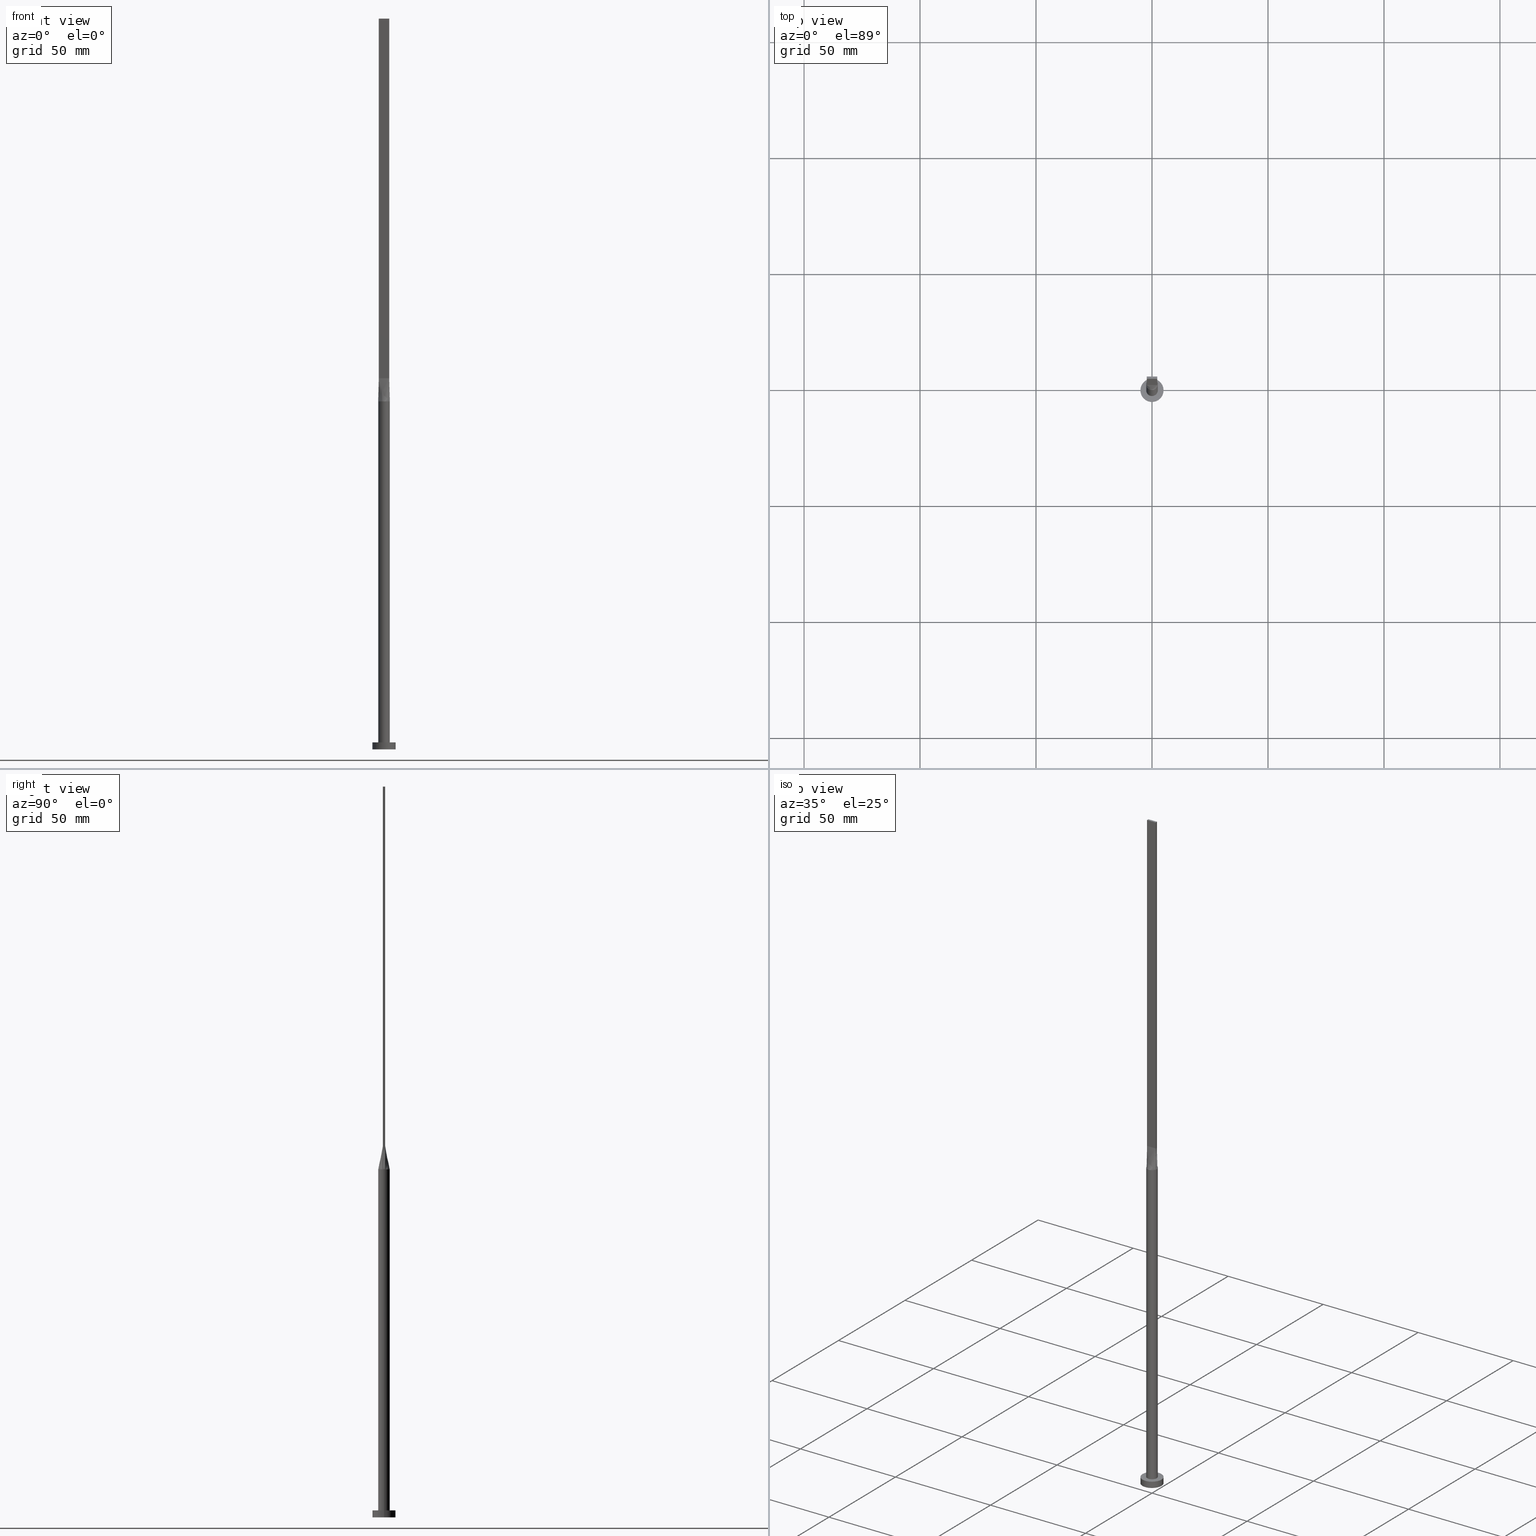
[diagram: canonical four-view strip — front | top / right | iso, engineering-drawing reading convention]
A machine part, canonical four-view strip (front | top / right | iso — engineering-drawing reading convention). The complete STEP part file that produces these views, byte-faithful:
ISO-10303-21;
HEADER;
FILE_DESCRIPTION (( 'STEP AP203' ),
    '1' );
FILE_NAME ('208b.STEP',
    '2023-02-13T12:34:08',
    ( '' ),
    ( '' ),
    'SwSTEP 2.0',
    'SolidWorks 2019',
    '' );
FILE_SCHEMA (( 'CONFIG_CONTROL_DESIGN' ));
ENDSEC;

DATA;
#1 = CARTESIAN_POINT ( 'NONE',  ( -2.249999999999999556, 0.1666666666666672403, 159.9999999999999716 ) ) ;
#2 = ORIENTED_EDGE ( 'NONE', *, *, #499, .T. ) ;
#3 = CARTESIAN_POINT ( 'NONE',  ( 0.000000000000000000, 0.000000000000000000, 0.000000000000000000 ) ) ;
#4 = ORIENTED_EDGE ( 'NONE', *, *, #347, .T. ) ;
#5 = AXIS2_PLACEMENT_3D ( 'NONE', #305, #261, #331 ) ;
#6 = CC_DESIGN_PERSON_AND_ORGANIZATION_ASSIGNMENT ( #440, #526, ( #46 ) ) ;
#7 = PLANE ( 'NONE',  #385 ) ;
#8 = ORIENTED_EDGE ( 'NONE', *, *, #410, .T. ) ;
#9 = CARTESIAN_POINT ( 'NONE',  ( -2.396350003401058082, 0.7408555563113466969, 150.0000000000000284 ) ) ;
#10 = EDGE_LOOP ( 'NONE', ( #186, #97, #182, #130, #201 ) ) ;
#11 = EDGE_CURVE ( 'NONE', #104, #449, #413, .T. ) ;
#12 = CARTESIAN_POINT ( 'NONE',  ( 0.000000000000000000, 0.000000000000000000, 3.000000000000000000 ) ) ;
#13 = ORIENTED_EDGE ( 'NONE', *, *, #139, .T. ) ;
#14 = CARTESIAN_POINT ( 'NONE',  ( 2.250000000000000000, -0.4999999999999997780, 315.0000000000000000 ) ) ;
#15 = CARTESIAN_POINT ( 'NONE',  ( -1.312500000000000444, -0.4999999999999995559, 159.9999999999999716 ) ) ;
#16 = DIRECTION ( 'NONE',  ( -0.000000000000000000, -0.000000000000000000, -1.000000000000000000 ) ) ;
#17 = FACE_OUTER_BOUND ( 'NONE', #289, .T. ) ;
#18 = DATE_AND_TIME ( #114, #515 ) ;
#19 = DIRECTION ( 'NONE',  ( -0.000000000000000000, -0.000000000000000000, -1.000000000000000000 ) ) ;
#20 = DIRECTION ( 'NONE',  ( 1.000000000000000000, 0.000000000000000000, 0.000000000000000000 ) ) ;
#21 = CALENDAR_DATE ( 2023, 13, 2 ) ;
#22 = CLOSED_SHELL ( 'NONE', ( #176, #525, #142, #265, #89, #407, #155, #512, #314, #302, #572, #542, #351, #319, #365 ) ) ;
#23 = CARTESIAN_POINT ( 'NONE',  ( 0.000000000000000000, 0.000000000000000000, 150.0000000000000000 ) ) ;
#24 = CARTESIAN_POINT ( 'NONE',  ( -2.440688158044365785, -0.5423755258804862089, 150.0000000000000000 ) ) ;
#25 = CIRCLE ( 'NONE', #374, 2.500000000000000000 ) ;
#26 = DIRECTION ( 'NONE',  ( -1.000000000000000000, 0.000000000000000000, 0.000000000000000000 ) ) ;
#27 = DIRECTION ( 'NONE',  ( -4.336808689942017736E-16, 1.000000000000000000, 0.000000000000000000 ) ) ;
#28 = EDGE_CURVE ( 'NONE', #234, #223, #184, .T. ) ;
#29 = CARTESIAN_POINT ( 'NONE',  ( 5.000000000000000000, 6.123233995736766282E-16, 3.000000000000000000 ) ) ;
#30 = CARTESIAN_POINT ( 'NONE',  ( 2.249999999999999556, 0.5000000000000002220, 315.0000000000000000 ) ) ;
#31 = VECTOR ( 'NONE', #345, 1000.000000000000114 ) ;
#32 = VECTOR ( 'NONE', #476, 1000.000000000000000 ) ;
#33 = CARTESIAN_POINT ( 'NONE',  ( 2.440467650459881899, -0.5423261445466410757, 150.0000000000000000 ) ) ;
#34 = LINE ( 'NONE', #185, #580 ) ;
#35 = DIRECTION ( 'NONE',  ( -1.000000000000000000, -0.000000000000000000, -0.000000000000000000 ) ) ;
#36 = ORIENTED_EDGE ( 'NONE', *, *, #472, .F. ) ;
#37 = EDGE_CURVE ( 'NONE', #317, #191, #247, .T. ) ;
#38 = LINE ( 'NONE', #349, #166 ) ;
#39 = ORIENTED_EDGE ( 'NONE', *, *, #147, .F. ) ;
#40 = LOCAL_TIME ( 13, 34, 8.000000000000000000, #263 ) ;
#41 = CARTESIAN_POINT ( 'NONE',  ( -0.7500000000000124345, 0.5000000000000002220, 159.9999999999999716 ) ) ;
#42 = AXIS2_PLACEMENT_3D ( 'NONE', #573, #391, #352 ) ;
#43 = ORIENTED_EDGE ( 'NONE', *, *, #478, .T. ) ;
#44 = LINE ( 'NONE', #414, #497 ) ;
#45 = ORIENTED_EDGE ( 'NONE', *, *, #76, .T. ) ;
#46 = PRODUCT_DEFINITION ( 'NEZN�M�', '', #405, #310 ) ;
#47 = CARTESIAN_POINT ( 'NONE',  ( -1.500000000000007327, 0.5000000000000002220, 159.9999999999999716 ) ) ;
#48 = EDGE_LOOP ( 'NONE', ( #442, #457 ) ) ;
#49 = CARTESIAN_POINT ( 'NONE',  ( -2.249999999999999556, 0.5000000000000002220, 160.0000000000000000 ) ) ;
#50 = ORIENTED_EDGE ( 'NONE', *, *, #389, .T. ) ;
#51 = CARTESIAN_POINT ( 'NONE',  ( -2.249999999999999556, -0.1666666666666659358, 159.9999999999999716 ) ) ;
#52 = ORIENTED_EDGE ( 'NONE', *, *, #76, .F. ) ;
#53 = DIRECTION ( 'NONE',  ( -0.000000000000000000, -0.000000000000000000, -1.000000000000000000 ) ) ;
#54 = APPROVAL ( #299, 'NEUR�EN�' ) ;
#55 = PRODUCT_DEFINITION_SHAPE ( 'NONE', 'NONE',  #46 ) ;
#56 = CARTESIAN_POINT ( 'NONE',  ( -2.250000000000000000, -0.4999999999999994449, 315.0000000000000000 ) ) ;
#57 = MECHANICAL_CONTEXT ( 'NONE', #447, 'mechanical' ) ;
#58 = AXIS2_PLACEMENT_3D ( 'NONE', #292, #67, #70 ) ;
#59 = PLANE ( 'NONE',  #406 ) ;
#60 = LINE ( 'NONE', #477, #31 ) ;
#61 = APPROVAL_PERSON_ORGANIZATION ( #121, #428, #339 ) ;
#62 = APPLICATION_PROTOCOL_DEFINITION ( 'international standard', 'config_control_design', 1994, #447 ) ;
#63 = CARTESIAN_POINT ( 'NONE',  ( 2.250000000000000000, -0.4999999999999997780, 315.0000000000000000 ) ) ;
#64 = DIRECTION ( 'NONE',  ( -0.000000000000000000, -0.000000000000000000, -1.000000000000000000 ) ) ;
#65 = PERSON_AND_ORGANIZATION ( #474, #297 ) ;
#66 = CARTESIAN_POINT ( 'NONE',  ( 2.250000000000000000, -0.4999999999999997780, 160.0000000000000000 ) ) ;
#67 = DIRECTION ( 'NONE',  ( 0.000000000000000000, 0.000000000000000000, 1.000000000000000000 ) ) ;
#68 = COORDINATED_UNIVERSAL_TIME_OFFSET ( 1, 0, .AHEAD. ) ;
#69 = CARTESIAN_POINT ( 'NONE',  ( 2.440706242928429415, -0.5423794613208688942, 150.0000000000000000 ) ) ;
#70 = DIRECTION ( 'NONE',  ( 1.000000000000000000, 0.000000000000000000, -0.000000000000000000 ) ) ;
#71 = VECTOR ( 'NONE', #379, 1000.000000000000000 ) ;
#72 = CARTESIAN_POINT ( 'NONE',  ( 0.000000000000000000, 0.000000000000000000, 0.000000000000000000 ) ) ;
#73 = ADVANCED_BREP_SHAPE_REPRESENTATION ( '208b', ( #152, #557 ), #308 ) ;
#74 = CIRCLE ( 'NONE', #241, 5.000000000000000000 ) ;
#75 = DIRECTION ( 'NONE',  ( 0.000000000000000000, -0.000000000000000000, -1.000000000000000000 ) ) ;
#76 = EDGE_CURVE ( 'NONE', #420, #317, #60, .T. ) ;
#77 = CARTESIAN_POINT ( 'NONE',  ( 2.093723281432890548, -1.388001797188530340, 150.0000000000000284 ) ) ;
#78 = ORIENTED_EDGE ( 'NONE', *, *, #93, .F. ) ;
#79 = CARTESIAN_POINT ( 'NONE',  ( 5.000000000000000000, 6.123233995736766282E-16, 0.000000000000000000 ) ) ;
#80 = ORIENTED_EDGE ( 'NONE', *, *, #389, .F. ) ;
#81 = CARTESIAN_POINT ( 'NONE',  ( 2.250000000000000000, -0.4999999999999997780, 160.0000000000000000 ) ) ;
#82 = VECTOR ( 'NONE', #427, 1000.000000000000000 ) ;
#83 = CARTESIAN_POINT ( 'NONE',  ( 0.000000000000000000, 0.000000000000000000, 150.0000000000000000 ) ) ;
#84 = AXIS2_PLACEMENT_3D ( 'NONE', #207, #438, #483 ) ;
#85 = ORIENTED_EDGE ( 'NONE', *, *, #169, .T. ) ;
#86 = CARTESIAN_POINT ( 'NONE',  ( 2.440467650459881899, 0.5423261445466406316, 150.0000000000000000 ) ) ;
#87 = CIRCLE ( 'NONE', #42, 2.500000000000000000 ) ;
#88 = VERTEX_POINT ( 'NONE', #204 ) ;
#89 = ADVANCED_FACE ( 'NONE', ( #165 ), #334, .F. ) ;
#90 = CARTESIAN_POINT ( 'NONE',  ( 0.000000000000000000, 0.000000000000000000, 3.000000000000000000 ) ) ;
#91 = B_SPLINE_SURFACE_WITH_KNOTS ( 'NONE', 3, 1, ( 
 ( #33, #81 ),
 ( #174, #390 ),
 ( #221, #536 ),
 ( #436, #533 ),
 ( #387, #224 ),
 ( #180, #397 ) ),
 .UNSPECIFIED., .F., .F., .F.,
 ( 4, 2, 4 ),
 ( 2, 2 ),
 ( 0.000000000000000000, 0.5000000000000000000, 1.000000000000000000 ),
 ( 0.000000000000000000, 1.000000000000000000 ),
 .UNSPECIFIED. ) ;
#92 = CARTESIAN_POINT ( 'NONE',  ( -1.519400572660313253, 2.006070808634367264, 150.0000000000000000 ) ) ;
#93 = EDGE_CURVE ( 'NONE', #514, #301, #248, .T. ) ;
#94 = VERTEX_POINT ( 'NONE', #530 ) ;
#95 = DIRECTION ( 'NONE',  ( 1.000000000000000000, 0.000000000000000000, 0.000000000000000000 ) ) ;
#96 = EDGE_CURVE ( 'NONE', #514, #244, #294, .T. ) ;
#97 = ORIENTED_EDGE ( 'NONE', *, *, #93, .T. ) ;
#98 = CARTESIAN_POINT ( 'NONE',  ( -1.312500000000008660, 0.5000000000000002220, 159.9999999999999716 ) ) ;
#99 = ORIENTED_EDGE ( 'NONE', *, *, #245, .F. ) ;
#100 = CARTESIAN_POINT ( 'NONE',  ( -2.250000000000000000, -0.3333333333333325932, 159.9999999999999716 ) ) ;
#101 = VERTEX_POINT ( 'NONE', #56 ) ;
#102 = CARTESIAN_POINT ( 'NONE',  ( 2.062499999999996891, 0.5000000000000002220, 159.9999999999999716 ) ) ;
#103 = LOCAL_TIME ( 13, 34, 8.000000000000000000, #303 ) ;
#104 = VERTEX_POINT ( 'NONE', #24 ) ;
#105 = VECTOR ( 'NONE', #16, 1000.000000000000000 ) ;
#106 = AXIS2_PLACEMENT_3D ( 'NONE', #131, #569, #125 ) ;
#107 = CC_DESIGN_PERSON_AND_ORGANIZATION_ASSIGNMENT ( #386, #124, ( #405 ) ) ;
#108 = CARTESIAN_POINT ( 'NONE',  ( -2.396350003401058082, 0.7408555563113466969, 150.0000000000000284 ) ) ;
#109 = CARTESIAN_POINT ( 'NONE',  ( -2.249999999999999556, 0.5000000000000002220, 160.0000000000000000 ) ) ;
#110 = PERSON_AND_ORGANIZATION ( #474, #297 ) ;
#111 = CARTESIAN_POINT ( 'NONE',  ( -0.6674771052374470770, 2.430579781493059421, 149.9999999999999716 ) ) ;
#112 = CARTESIAN_POINT ( 'NONE',  ( 0.000000000000000000, 0.000000000000000000, 0.000000000000000000 ) ) ;
#113 = EDGE_CURVE ( 'NONE', #244, #496, #115, .T. ) ;
#114 = CALENDAR_DATE ( 2023, 13, 2 ) ;
#115 = CIRCLE ( 'NONE', #5, 2.500000000000000000 ) ;
#116 = CARTESIAN_POINT ( 'NONE',  ( -2.250000000000000000, -0.4999999999999994449, 160.0000000000000000 ) ) ;
#117 = CARTESIAN_POINT ( 'NONE',  ( -0.6674771052374477431, -2.430579781493059865, 149.9999999999999716 ) ) ;
#118 = PERSON_AND_ORGANIZATION_ROLE ( 'classification_officer' ) ;
#119 = LINE ( 'NONE', #209, #71 ) ;
#120 = CARTESIAN_POINT ( 'NONE',  ( 0.6674771052374466329, -2.430579781493059865, 149.9999999999999716 ) ) ;
#121 = PERSON_AND_ORGANIZATION ( #474, #297 ) ;
#122 = DIRECTION ( 'NONE',  ( 1.000000000000000000, -7.228014483236697048E-17, 0.000000000000000000 ) ) ;
#123 = DIRECTION ( 'NONE',  ( 1.000000000000000000, 0.000000000000000000, 0.000000000000000000 ) ) ;
#124 = PERSON_AND_ORGANIZATION_ROLE ( 'creator' ) ;
#125 = DIRECTION ( 'NONE',  ( 4.336808689942019708E-16, 1.000000000000000000, 0.000000000000000000 ) ) ;
#126 = CARTESIAN_POINT ( 'NONE',  ( 1.499999999999999778, -0.4999999999999997780, 159.9999999999999716 ) ) ;
#127 = CC_DESIGN_APPROVAL ( #54, ( #394 ) ) ;
#128 = CARTESIAN_POINT ( 'NONE',  ( 0.000000000000000000, 0.000000000000000000, 3.000000000000000000 ) ) ;
#129 = LINE ( 'NONE', #30, #466 ) ;
#130 = ORIENTED_EDGE ( 'NONE', *, *, #341, .F. ) ;
#131 = CARTESIAN_POINT ( 'NONE',  ( -2.249999999999999556, 0.5000000000000002220, 315.0000000000000000 ) ) ;
#132 = DIRECTION ( 'NONE',  ( -1.000000000000000000, 0.000000000000000000, 0.000000000000000000 ) ) ;
#133 = DIRECTION ( 'NONE',  ( 0.000000000000000000, 0.000000000000000000, 1.000000000000000000 ) ) ;
#134 = APPROVAL ( #560, 'NEUR�EN�' ) ;
#135 = ORIENTED_EDGE ( 'NONE', *, *, #205, .T. ) ;
#136 = DIRECTION ( 'NONE',  ( -1.000000000000000000, 0.000000000000000000, 0.000000000000000000 ) ) ;
#137 = VECTOR ( 'NONE', #122, 1000.000000000000000 ) ;
#138 = ORIENTED_EDGE ( 'NONE', *, *, #472, .T. ) ;
#139 = EDGE_CURVE ( 'NONE', #451, #88, #517, .T. ) ;
#140 = CARTESIAN_POINT ( 'NONE',  ( -2.499291179871646840, 0.1829277781556734317, 150.0000000000000000 ) ) ;
#141 = ORIENTED_EDGE ( 'NONE', *, *, #28, .T. ) ;
#142 = ADVANCED_FACE ( 'NONE', ( #17 ), #298, .T. ) ;
#143 = CARTESIAN_POINT ( 'NONE',  ( 0.3342381693191150416, 2.499999999999999556, 150.0000000000000000 ) ) ;
#144 = ORIENTED_EDGE ( 'NONE', *, *, #454, .T. ) ;
#145 = B_SPLINE_CURVE_WITH_KNOTS ( 'NONE', 3,
 ( #529, #433, #369, #330, #519, #480, #304, #482, #566, #206, #111, #171, #558, #373, #161, #555, #108, #156 ),
 .UNSPECIFIED., .F., .F.,
 ( 4, 2, 2, 2, 2, 2, 2, 2, 4 ),
 ( 0.000000000000000000, 0.1249999999999999722, 0.2500000000000000000, 0.3750000000000000000, 0.5000000000000001110, 0.6250000000000001110, 0.7500000000000000000, 0.8750000000000000000, 1.000000000000000000 ),
 .UNSPECIFIED. ) ;
#146 = FACE_OUTER_BOUND ( 'NONE', #581, .T. ) ;
#147 = EDGE_CURVE ( 'NONE', #266, #496, #217, .T. ) ;
#148 = AXIS2_PLACEMENT_3D ( 'NONE', #441, #227, #229 ) ;
#149 = ORIENTED_EDGE ( 'NONE', *, *, #315, .F. ) ;
#150 = CARTESIAN_POINT ( 'NONE',  ( 1.519400572660313031, 2.006070808634367708, 149.9999999999999716 ) ) ;
#151 = EDGE_LOOP ( 'NONE', ( #548, #360, #195, #144 ) ) ;
#152 = MANIFOLD_SOLID_BREP ( 'P�idat vysunut�m5', #22 ) ;
#153 = FACE_OUTER_BOUND ( 'NONE', #504, .T. ) ;
#154 = EDGE_LOOP ( 'NONE', ( #508, #544 ) ) ;
#155 = ADVANCED_FACE ( 'NONE', ( #384 ), #452, .T. ) ;
#156 = CARTESIAN_POINT ( 'NONE',  ( -2.440694335308545071, 0.5423767520433731004, 150.0000000000000000 ) ) ;
#157 = APPROVAL_PERSON_ORGANIZATION ( #335, #134, #160 ) ;
#158 = ORIENTED_EDGE ( 'NONE', *, *, #220, .T. ) ;
#159 = AXIS2_PLACEMENT_3D ( 'NONE', #23, #291, #469 ) ;
#160 = APPROVAL_ROLE ( '' ) ;
#161 = CARTESIAN_POINT ( 'NONE',  ( -2.093723281432891437, 1.388001797188529451, 150.0000000000000000 ) ) ;
#162 = CARTESIAN_POINT ( 'NONE',  ( -0.9375000000000006661, -0.4999999999999995559, 159.9999999999999716 ) ) ;
#163 = PERSON_AND_ORGANIZATION_ROLE ( 'design_owner' ) ;
#164 = LINE ( 'NONE', #376, #488 ) ;
#165 = FACE_OUTER_BOUND ( 'NONE', #48, .T. ) ;
#166 = VECTOR ( 'NONE', #276, 1000.000000000000114 ) ;
#167 = DIRECTION ( 'NONE',  ( -1.000000000000000000, 7.228014483236697048E-17, 0.000000000000000000 ) ) ;
#168 = CARTESIAN_POINT ( 'NONE',  ( -2.250000000000000000, -0.4999999999999994449, 160.0000000000000000 ) ) ;
#169 = EDGE_CURVE ( 'NONE', #465, #317, #222, .T. ) ;
#170 = CALENDAR_DATE ( 2023, 13, 2 ) ;
#171 = CARTESIAN_POINT ( 'NONE',  ( -1.260416918790968843, 2.182794756967428196, 149.9999999999999716 ) ) ;
#172 = CARTESIAN_POINT ( 'NONE',  ( -1.875000000000000444, -0.4999999999999995559, 160.0000000000000000 ) ) ;
#173 = APPROVAL_DATE_TIME ( #18, #134 ) ;
#174 = CARTESIAN_POINT ( 'NONE',  ( 2.479683336734391563, -0.3658555563113470299, 150.0000000000000000 ) ) ;
#175 = LINE ( 'NONE', #225, #215 ) ;
#176 = ADVANCED_FACE ( 'NONE', ( #534 ), #540, .T. ) ;
#177 =( NAMED_UNIT ( * ) SI_UNIT ( $, .STERADIAN. ) SOLID_ANGLE_UNIT ( ) );
#178 = CARTESIAN_POINT ( 'NONE',  ( 2.250000000000000000, -0.4999999999999997780, 160.0000000000000000 ) ) ;
#179 = AXIS2_PLACEMENT_3D ( 'NONE', #90, #354, #537 ) ;
#180 = CARTESIAN_POINT ( 'NONE',  ( 2.440467650459881899, 0.5423261445466404096, 150.0000000000000000 ) ) ;
#181 = PLANE ( 'NONE',  #179 ) ;
#182 = ORIENTED_EDGE ( 'NONE', *, *, #189, .T. ) ;
#183 = FACE_BOUND ( 'NONE', #269, .T. ) ;
#184 = CIRCLE ( 'NONE', #350, 5.000000000000000000 ) ;
#185 = CARTESIAN_POINT ( 'NONE',  ( -2.345233825229941171, -0.5211630722733197052, 155.0000000000000000 ) ) ;
#186 = ORIENTED_EDGE ( 'NONE', *, *, #245, .T. ) ;
#187 = B_SPLINE_SURFACE_WITH_KNOTS ( 'NONE', 3, 1, ( 
 ( #408, #411 ),
 ( #509, #197 ),
 ( #140, #1 ),
 ( #279, #51 ),
 ( #190, #100 ),
 ( #322, #359 ) ),
 .UNSPECIFIED., .F., .F., .F.,
 ( 4, 2, 4 ),
 ( 2, 2 ),
 ( 0.000000000000000000, 0.5000000000000000000, 1.000000000000000000 ),
 ( 0.000000000000000000, 1.000000000000000000 ),
 .UNSPECIFIED. ) ;
#188 = CARTESIAN_POINT ( 'NONE',  ( 1.260416918790968843, 2.182794756967427752, 149.9999999999999716 ) ) ;
#189 = EDGE_CURVE ( 'NONE', #301, #465, #38, .T. ) ;
#190 = CARTESIAN_POINT ( 'NONE',  ( -2.479683336734392007, -0.3658555563113460307, 150.0000000000000000 ) ) ;
#191 = VERTEX_POINT ( 'NONE', #490 ) ;
#192 = DIRECTION ( 'NONE',  ( 0.000000000000000000, 0.000000000000000000, 1.000000000000000000 ) ) ;
#193 = ORIENTED_EDGE ( 'NONE', *, *, #531, .T. ) ;
#194 = CARTESIAN_POINT ( 'NONE',  ( -2.250000000000000000, -0.4999999999999994449, 315.0000000000000000 ) ) ;
#195 = ORIENTED_EDGE ( 'NONE', *, *, #437, .F. ) ;
#196 = APPLICATION_CONTEXT ( 'configuration controlled 3d designs of mechanical parts and assemblies' ) ;
#197 = CARTESIAN_POINT ( 'NONE',  ( -2.249999999999999556, 0.3333333333333337589, 159.9999999999999716 ) ) ;
#198 = EDGE_CURVE ( 'NONE', #88, #94, #129, .T. ) ;
#199 = ORIENTED_EDGE ( 'NONE', *, *, #499, .F. ) ;
#200 = DIRECTION ( 'NONE',  ( 7.228014483236697048E-17, 1.000000000000000000, -0.000000000000000000 ) ) ;
#201 = ORIENTED_EDGE ( 'NONE', *, *, #239, .F. ) ;
#202 = CALENDAR_DATE ( 2023, 13, 2 ) ;
#203 = FACE_OUTER_BOUND ( 'NONE', #286, .T. ) ;
#204 = CARTESIAN_POINT ( 'NONE',  ( 2.249999999999999556, 0.5000000000000002220, 315.0000000000000000 ) ) ;
#205 = EDGE_CURVE ( 'NONE', #266, #104, #343, .T. ) ;
#206 = CARTESIAN_POINT ( 'NONE',  ( -0.3342381693191151526, 2.499999999999999556, 150.0000000000000284 ) ) ;
#207 = CARTESIAN_POINT ( 'NONE',  ( 0.000000000000000000, 0.000000000000000000, 3.000000000000000000 ) ) ;
#208 = DATE_TIME_ROLE ( 'classification_date' ) ;
#209 = CARTESIAN_POINT ( 'NONE',  ( -2.250000000000000000, -0.4999999999999994449, 315.0000000000000000 ) ) ;
#210 = CARTESIAN_POINT ( 'NONE',  ( 2.250000000000000000, -0.4999999999999997780, 315.0000000000000000 ) ) ;
#211 = DATE_AND_TIME ( #21, #251 ) ;
#212 = LINE ( 'NONE', #383, #32 ) ;
#213 = CARTESIAN_POINT ( 'NONE',  ( 0.000000000000000000, 0.000000000000000000, 150.0000000000000000 ) ) ;
#214 = PERSON_AND_ORGANIZATION_ROLE ( 'design_supplier' ) ;
#215 = VECTOR ( 'NONE', #498, 1000.000000000000114 ) ;
#216 = PLANE ( 'NONE',  #106 ) ;
#217 = LINE ( 'NONE', #388, #523 ) ;
#218 = DIRECTION ( 'NONE',  ( -0.000000000000000000, -0.000000000000000000, -1.000000000000000000 ) ) ;
#219 = CARTESIAN_POINT ( 'NONE',  ( -2.249999999999999556, 0.5000000000000002220, 160.0000000000000000 ) ) ;
#220 = EDGE_CURVE ( 'NONE', #191, #104, #34, .T. ) ;
#221 = CARTESIAN_POINT ( 'NONE',  ( 2.499291179871646396, -0.1829277781556736815, 150.0000000000000000 ) ) ;
#222 = LINE ( 'NONE', #219, #338 ) ;
#223 = VERTEX_POINT ( 'NONE', #79 ) ;
#224 = CARTESIAN_POINT ( 'NONE',  ( 2.249999999999999556, 0.3333333333333332593, 159.9999999999999716 ) ) ;
#225 = CARTESIAN_POINT ( 'NONE',  ( 2.345233825229940727, -0.5211630722733201493, 155.0000000000000000 ) ) ;
#226 = ORIENTED_EDGE ( 'NONE', *, *, #456, .F. ) ;
#227 = DIRECTION ( 'NONE',  ( 0.000000000000000000, 0.000000000000000000, 1.000000000000000000 ) ) ;
#228 = ORIENTED_EDGE ( 'NONE', *, *, #290, .F. ) ;
#229 = DIRECTION ( 'NONE',  ( 1.000000000000000000, 0.000000000000000000, 0.000000000000000000 ) ) ;
#230 = ORIENTED_EDGE ( 'NONE', *, *, #273, .T. ) ;
#231 = APPROVAL_PERSON_ORGANIZATION ( #110, #54, #378 ) ;
#232 = CARTESIAN_POINT ( 'NONE',  ( -0.3342381693191151526, 2.499999999999999556, 150.0000000000000284 ) ) ;
#233 = CC_DESIGN_DATE_AND_TIME_ASSIGNMENT ( #432, #208, ( #394 ) ) ;
#234 = VERTEX_POINT ( 'NONE', #404 ) ;
#235 = DIRECTION ( 'NONE',  ( -4.336808689942017736E-16, 1.000000000000000000, -0.000000000000000000 ) ) ;
#236 = EDGE_LOOP ( 'NONE', ( #554, #45, #552, #494 ) ) ;
#237 = CARTESIAN_POINT ( 'NONE',  ( 2.093723281432890104, 1.388001797188529007, 149.9999999999999716 ) ) ;
#238 = VERTEX_POINT ( 'NONE', #29 ) ;
#239 = EDGE_CURVE ( 'NONE', #449, #491, #175, .T. ) ;
#240 = CARTESIAN_POINT ( 'NONE',  ( -1.935644909179609297, 1.608159499248285718, 149.9999999999999716 ) ) ;
#241 = AXIS2_PLACEMENT_3D ( 'NONE', #3, #192, #361 ) ;
#242 = ORIENTED_EDGE ( 'NONE', *, *, #421, .F. ) ;
#243 = PLANE ( 'NONE',  #506 ) ;
#244 = VERTEX_POINT ( 'NONE', #393 ) ;
#245 = EDGE_CURVE ( 'NONE', #449, #514, #87, .T. ) ;
#246 = CARTESIAN_POINT ( 'NONE',  ( 2.249999999999999556, 0.5000000000000002220, 160.0000000000000000 ) ) ;
#247 = LINE ( 'NONE', #109, #463 ) ;
#248 = CIRCLE ( 'NONE', #258, 2.500000000000000000 ) ;
#249 = DATE_AND_TIME ( #253, #435 ) ;
#250 = LINE ( 'NONE', #425, #105 ) ;
#251 = LOCAL_TIME ( 13, 34, 8.000000000000000000, #475 ) ;
#252 = CARTESIAN_POINT ( 'NONE',  ( 2.500000000000000000, 3.061616997868383141E-16, 150.0000000000000000 ) ) ;
#253 = CALENDAR_DATE ( 2023, 13, 2 ) ;
#254 = DIRECTION ( 'NONE',  ( 0.000000000000000000, 0.000000000000000000, 1.000000000000000000 ) ) ;
#255 = CARTESIAN_POINT ( 'NONE',  ( -0.3750000000000002220, -0.4999999999999995559, 159.9999999999999716 ) ) ;
#256 = DIRECTION ( 'NONE',  ( 1.000000000000000000, 0.000000000000000000, 0.000000000000000000 ) ) ;
#257 = DIRECTION ( 'NONE',  ( 0.000000000000000000, 0.000000000000000000, 1.000000000000000000 ) ) ;
#258 = AXIS2_PLACEMENT_3D ( 'NONE', #470, #257, #434 ) ;
#259 = COORDINATED_UNIVERSAL_TIME_OFFSET ( 1, 0, .AHEAD. ) ;
#260 = DIRECTION ( 'NONE',  ( 1.000000000000000000, -7.228014483236697048E-17, 0.000000000000000000 ) ) ;
#261 = DIRECTION ( 'NONE',  ( 0.000000000000000000, 0.000000000000000000, 1.000000000000000000 ) ) ;
#262 = CC_DESIGN_APPROVAL ( #428, ( #46 ) ) ;
#263 = COORDINATED_UNIVERSAL_TIME_OFFSET ( 1, 0, .AHEAD. ) ;
#264 = CARTESIAN_POINT ( 'NONE',  ( 1.519400572660313031, -2.006070808634367264, 149.9999999999999716 ) ) ;
#265 = ADVANCED_FACE ( 'NONE', ( #183, #267 ), #181, .T. ) ;
#266 = VERTEX_POINT ( 'NONE', #271 ) ;
#267 = FACE_OUTER_BOUND ( 'NONE', #154, .T. ) ;
#268 = CC_DESIGN_PERSON_AND_ORGANIZATION_ASSIGNMENT ( #532, #163, ( #500 ) ) ;
#269 = EDGE_LOOP ( 'NONE', ( #366, #556 ) ) ;
#270 =( LENGTH_UNIT ( ) NAMED_UNIT ( * ) SI_UNIT ( .MILLI., .METRE. ) );
#271 = CARTESIAN_POINT ( 'NONE',  ( -2.499645589935823420, -1.700711608024726496E-15, 150.0000000000000000 ) ) ;
#272 = ORIENTED_EDGE ( 'NONE', *, *, #454, .F. ) ;
#273 = EDGE_CURVE ( 'NONE', #496, #244, #25, .T. ) ;
#274 = CARTESIAN_POINT ( 'NONE',  ( 2.249999999999999556, 0.5000000000000002220, 160.0000000000000000 ) ) ;
#275 = ORIENTED_EDGE ( 'NONE', *, *, #401, .F. ) ;
#276 = DIRECTION ( 'NONE',  ( -0.01904314058352517616, -0.004231809018561114022, 0.9998097071888962795 ) ) ;
#277 = B_SPLINE_SURFACE_WITH_KNOTS ( 'NONE', 3, 1, ( 
 ( #86, #274 ),
 ( #450, #102 ),
 ( #513, #455 ),
 ( #237, #550 ),
 ( #285, #358 ),
 ( #150, #501 ),
 ( #188, #464 ),
 ( #283, #545 ),
 ( #143, #417 ),
 ( #232, #326 ),
 ( #507, #324 ),
 ( #461, #41 ),
 ( #92, #320 ),
 ( #240, #98 ),
 ( #579, #47 ),
 ( #288, #364 ),
 ( #9, #543 ),
 ( #503, #49 ) ),
 .UNSPECIFIED., .F., .F., .F.,
 ( 4, 2, 2, 2, 2, 2, 2, 2, 4 ),
 ( 2, 2 ),
 ( 0.000000000000000000, 0.1249999999999999722, 0.2500000000000000000, 0.3750000000000000000, 0.5000000000000001110, 0.6250000000000001110, 0.7500000000000000000, 0.8750000000000000000, 1.000000000000000000 ),
 ( 0.000000000000000000, 1.000000000000000000 ),
 .UNSPECIFIED. ) ;
#278 = AXIS2_PLACEMENT_3D ( 'NONE', #213, #473, #123 ) ;
#279 = CARTESIAN_POINT ( 'NONE',  ( -2.499291179871646840, -0.1829277781556729043, 150.0000000000000000 ) ) ;
#280 = EDGE_LOOP ( 'NONE', ( #78, #462, #329, #39, #199, #275 ) ) ;
#281 = CARTESIAN_POINT ( 'NONE',  ( 2.250000000000000000, -0.4999999999999997780, 315.0000000000000000 ) ) ;
#282 = ORIENTED_EDGE ( 'NONE', *, *, #531, .F. ) ;
#283 = CARTESIAN_POINT ( 'NONE',  ( 0.6674771052374470770, 2.430579781493058977, 149.9999999999999432 ) ) ;
#284 = ORIENTED_EDGE ( 'NONE', *, *, #198, .T. ) ;
#285 = CARTESIAN_POINT ( 'NONE',  ( 1.935644909179608186, 1.608159499248285051, 149.9999999999999432 ) ) ;
#286 = EDGE_LOOP ( 'NONE', ( #284, #460, #193, #13 ) ) ;
#287 = VECTOR ( 'NONE', #344, 1000.000000000000000 ) ;
#288 = CARTESIAN_POINT ( 'NONE',  ( -2.323660390030918510, 0.9543733860570832173, 150.0000000000000000 ) ) ;
#289 = EDGE_LOOP ( 'NONE', ( #415, #226, #409, #141 ) ) ;
#290 = EDGE_CURVE ( 'NONE', #88, #465, #577, .T. ) ;
#291 = DIRECTION ( 'NONE',  ( -0.000000000000000000, -0.000000000000000000, -1.000000000000000000 ) ) ;
#292 = CARTESIAN_POINT ( 'NONE',  ( 0.000000000000000000, 0.000000000000000000, 0.000000000000000000 ) ) ;
#293 = DIRECTION ( 'NONE',  ( 1.000000000000000000, 0.000000000000000000, -0.000000000000000000 ) ) ;
#294 = LINE ( 'NONE', #252, #82 ) ;
#295 = SECURITY_CLASSIFICATION_LEVEL ( 'unclassified' ) ;
#296 = FACE_OUTER_BOUND ( 'NONE', #321, .T. ) ;
#297 = ORGANIZATION ( 'NEUR�EN�', 'NEUR�EN�', '' ) ;
#298 = CYLINDRICAL_SURFACE ( 'NONE', #84, 5.000000000000000000 ) ;
#299 = APPROVAL_STATUS ( 'not_yet_approved' ) ;
#300 = CARTESIAN_POINT ( 'NONE',  ( 0.000000000000000000, 0.000000000000000000, 315.0000000000000000 ) ) ;
#301 = VERTEX_POINT ( 'NONE', #316 ) ;
#302 = ADVANCED_FACE ( 'NONE', ( #495 ), #277, .T. ) ;
#303 = COORDINATED_UNIVERSAL_TIME_OFFSET ( 1, 0, .AHEAD. ) ;
#304 = CARTESIAN_POINT ( 'NONE',  ( 1.260416918790968843, 2.182794756967427752, 149.9999999999999716 ) ) ;
#305 = CARTESIAN_POINT ( 'NONE',  ( 0.000000000000000000, 0.000000000000000000, 3.000000000000000000 ) ) ;
#306 = DIRECTION ( 'NONE',  ( 0.000000000000000000, -1.000000000000000000, 0.000000000000000000 ) ) ;
#307 = CARTESIAN_POINT ( 'NONE',  ( 0.3749999999999998890, -0.4999999999999995559, 159.9999999999999716 ) ) ;
#308 =( GEOMETRIC_REPRESENTATION_CONTEXT ( 3 ) GLOBAL_UNCERTAINTY_ASSIGNED_CONTEXT ( ( #403 ) ) GLOBAL_UNIT_ASSIGNED_CONTEXT ( ( #270, #571, #177 ) ) REPRESENTATION_CONTEXT ( 'NONE', 'WORKASPACE' ) );
#309 = FACE_OUTER_BOUND ( 'NONE', #546, .T. ) ;
#310 = DESIGN_CONTEXT ( 'detailed design', #196, 'design' ) ;
#311 = CARTESIAN_POINT ( 'NONE',  ( 1.260416918790968399, -2.182794756967428640, 149.9999999999999716 ) ) ;
#312 = LINE ( 'NONE', #492, #363 ) ;
#313 = CARTESIAN_POINT ( 'NONE',  ( 2.440467650459881899, -0.5423261445466405206, 150.0000000000000000 ) ) ;
#314 = ADVANCED_FACE ( 'NONE', ( #328 ), #187, .T. ) ;
#315 = EDGE_CURVE ( 'NONE', #238, #395, #357, .T. ) ;
#316 = CARTESIAN_POINT ( 'NONE',  ( 2.440676307083422980, 0.5423728264510006003, 150.0000000000000000 ) ) ;
#317 = VERTEX_POINT ( 'NONE', #467 ) ;
#318 = CARTESIAN_POINT ( 'NONE',  ( 1.875000000000000000, -0.4999999999999997780, 159.9999999999999716 ) ) ;
#319 = ADVANCED_FACE ( 'NONE', ( #153 ), #243, .F. ) ;
#320 = CARTESIAN_POINT ( 'NONE',  ( -0.9375000000000114353, 0.5000000000000002220, 159.9999999999999716 ) ) ;
#321 = EDGE_LOOP ( 'NONE', ( #444, #99, #323, #399, #325, #230 ) ) ;
#322 = CARTESIAN_POINT ( 'NONE',  ( -2.440467650459882343, -0.5423261445466400765, 150.0000000000000000 ) ) ;
#323 = ORIENTED_EDGE ( 'NONE', *, *, #11, .F. ) ;
#324 = CARTESIAN_POINT ( 'NONE',  ( -0.3750000000000138223, 0.5000000000000002220, 159.9999999999999716 ) ) ;
#325 = ORIENTED_EDGE ( 'NONE', *, *, #147, .T. ) ;
#326 = CARTESIAN_POINT ( 'NONE',  ( -0.1875000000000140443, 0.5000000000000002220, 159.9999999999999716 ) ) ;
#327 = ORIENTED_EDGE ( 'NONE', *, *, #341, .T. ) ;
#328 = FACE_OUTER_BOUND ( 'NONE', #362, .T. ) ;
#329 = ORIENTED_EDGE ( 'NONE', *, *, #113, .T. ) ;
#330 = CARTESIAN_POINT ( 'NONE',  ( 2.093723281432890104, 1.388001797188529007, 149.9999999999999716 ) ) ;
#331 = DIRECTION ( 'NONE',  ( 1.000000000000000000, 0.000000000000000000, 0.000000000000000000 ) ) ;
#332 = APPLICATION_PROTOCOL_DEFINITION ( 'international standard', 'config_control_design', 1994, #196 ) ;
#333 = DIRECTION ( 'NONE',  ( 0.000000000000000000, 0.000000000000000000, 1.000000000000000000 ) ) ;
#334 = PLANE ( 'NONE',  #58 ) ;
#335 = PERSON_AND_ORGANIZATION ( #474, #297 ) ;
#336 = CARTESIAN_POINT ( 'NONE',  ( -2.440694335308545071, 0.5423767520433731004, 150.0000000000000000 ) ) ;
#337 = CARTESIAN_POINT ( 'NONE',  ( -2.323660390030918066, -0.9543733860570832173, 150.0000000000000284 ) ) ;
#338 = VECTOR ( 'NONE', #35, 1000.000000000000000 ) ;
#339 = APPROVAL_ROLE ( '' ) ;
#340 = CARTESIAN_POINT ( 'NONE',  ( 0.000000000000000000, 0.000000000000000000, 150.0000000000000000 ) ) ;
#341 = EDGE_CURVE ( 'NONE', #491, #465, #44, .T. ) ;
#342 = CARTESIAN_POINT ( 'NONE',  ( -2.396350003401058970, -0.7408555563113458087, 150.0000000000000000 ) ) ;
#343 = CIRCLE ( 'NONE', #148, 2.500000000000000000 ) ;
#344 = DIRECTION ( 'NONE',  ( -0.000000000000000000, -0.000000000000000000, -1.000000000000000000 ) ) ;
#345 = DIRECTION ( 'NONE',  ( 0.01904314058352522473, -0.004231809018561028153, 0.9998097071888962795 ) ) ;
#346 = DIRECTION ( 'NONE',  ( 0.000000000000000000, 0.000000000000000000, 1.000000000000000000 ) ) ;
#347 = EDGE_CURVE ( 'NONE', #223, #234, #74, .T. ) ;
#348 = CYLINDRICAL_SURFACE ( 'NONE', #439, 5.000000000000000000 ) ;
#349 = CARTESIAN_POINT ( 'NONE',  ( 2.345233825229940283, 0.5211630722733202603, 155.0000000000000000 ) ) ;
#350 = AXIS2_PLACEMENT_3D ( 'NONE', #112, #481, #20 ) ;
#351 = ADVANCED_FACE ( 'NONE', ( #146 ), #7, .F. ) ;
#352 = DIRECTION ( 'NONE',  ( 1.000000000000000000, -4.440892098500626162E-15, 0.000000000000000000 ) ) ;
#353 = FACE_OUTER_BOUND ( 'NONE', #151, .T. ) ;
#354 = DIRECTION ( 'NONE',  ( 0.000000000000000000, 0.000000000000000000, 1.000000000000000000 ) ) ;
#355 = CARTESIAN_POINT ( 'NONE',  ( 2.249999999999999556, 0.5000000000000002220, 315.0000000000000000 ) ) ;
#356 = CARTESIAN_POINT ( 'NONE',  ( 2.062499999999999556, -0.4999999999999997780, 159.9999999999999716 ) ) ;
#357 = CIRCLE ( 'NONE', #416, 5.000000000000000000 ) ;
#358 = CARTESIAN_POINT ( 'NONE',  ( 1.312499999999990230, 0.5000000000000002220, 159.9999999999999716 ) ) ;
#359 = CARTESIAN_POINT ( 'NONE',  ( -2.250000000000000000, -0.4999999999999993339, 160.0000000000000000 ) ) ;
#360 = ORIENTED_EDGE ( 'NONE', *, *, #478, .F. ) ;
#361 = DIRECTION ( 'NONE',  ( 1.000000000000000000, 0.000000000000000000, 0.000000000000000000 ) ) ;
#362 = EDGE_LOOP ( 'NONE', ( #2, #135, #541, #370, #52 ) ) ;
#363 = VECTOR ( 'NONE', #260, 1000.000000000000000 ) ;
#364 = CARTESIAN_POINT ( 'NONE',  ( -1.875000000000003775, 0.5000000000000002220, 159.9999999999999716 ) ) ;
#365 = ADVANCED_FACE ( 'NONE', ( #203 ), #59, .T. ) ;
#366 = ORIENTED_EDGE ( 'NONE', *, *, #273, .F. ) ;
#367 = CARTESIAN_POINT ( 'NONE',  ( 0.000000000000000000, 0.000000000000000000, 3.000000000000000000 ) ) ;
#368 = EDGE_LOOP ( 'NONE', ( #502, #418, #80, #158 ) ) ;
#369 = CARTESIAN_POINT ( 'NONE',  ( 2.323660390030918954, 0.9543733860570833283, 150.0000000000000568 ) ) ;
#370 = ORIENTED_EDGE ( 'NONE', *, *, #37, .F. ) ;
#371 = SHAPE_DEFINITION_REPRESENTATION ( #55, #73 ) ;
#372 = AXIS2_PLACEMENT_3D ( 'NONE', #489, #306, #75 ) ;
#373 = CARTESIAN_POINT ( 'NONE',  ( -1.935644909179609297, 1.608159499248285718, 149.9999999999999716 ) ) ;
#374 = AXIS2_PLACEMENT_3D ( 'NONE', #448, #133, #398 ) ;
#375 = DIRECTION ( 'NONE',  ( -4.336808689942019708E-16, -1.000000000000000000, 0.000000000000000000 ) ) ;
#376 = CARTESIAN_POINT ( 'NONE',  ( -5.000000000000000000, 0.000000000000000000, 3.000000000000000000 ) ) ;
#377 = CARTESIAN_POINT ( 'NONE',  ( -2.093723281432891881, -1.388001797188529007, 150.0000000000000568 ) ) ;
#378 = APPROVAL_ROLE ( '' ) ;
#379 = DIRECTION ( 'NONE',  ( -0.000000000000000000, -0.000000000000000000, -1.000000000000000000 ) ) ;
#380 = CARTESIAN_POINT ( 'NONE',  ( -0.1874999999999999445, -0.4999999999999995559, 159.9999999999999716 ) ) ;
#381 = APPROVAL_DATE_TIME ( #211, #54 ) ;
#382 = CIRCLE ( 'NONE', #505, 2.500000000000000000 ) ;
#383 = CARTESIAN_POINT ( 'NONE',  ( -2.249999999999999556, 0.5000000000000002220, 315.0000000000000000 ) ) ;
#384 = FACE_OUTER_BOUND ( 'NONE', #368, .T. ) ;
#385 = AXIS2_PLACEMENT_3D ( 'NONE', #194, #200, #167 ) ;
#386 = PERSON_AND_ORGANIZATION ( #474, #297 ) ;
#387 = CARTESIAN_POINT ( 'NONE',  ( 2.479683336734391563, 0.3658555563113463638, 150.0000000000000000 ) ) ;
#388 = CARTESIAN_POINT ( 'NONE',  ( -2.500000000000000000, 0.000000000000000000, 150.0000000000000000 ) ) ;
#389 = EDGE_CURVE ( 'NONE', #191, #491, #419, .T. ) ;
#390 = CARTESIAN_POINT ( 'NONE',  ( 2.250000000000000000, -0.3333333333333333703, 159.9999999999999716 ) ) ;
#391 = DIRECTION ( 'NONE',  ( 0.000000000000000000, 0.000000000000000000, 1.000000000000000000 ) ) ;
#392 = CARTESIAN_POINT ( 'NONE',  ( 2.499645589935823420, 5.999196936655281332E-16, 150.0000000000000000 ) ) ;
#393 = CARTESIAN_POINT ( 'NONE',  ( 2.500000000000000000, 3.061616997868383141E-16, 3.000000000000000000 ) ) ;
#394 = SECURITY_CLASSIFICATION ( '', '', #295 ) ;
#395 = VERTEX_POINT ( 'NONE', #516 ) ;
#396 = VECTOR ( 'NONE', #538, 1000.000000000000000 ) ;
#397 = CARTESIAN_POINT ( 'NONE',  ( 2.249999999999999556, 0.5000000000000002220, 160.0000000000000000 ) ) ;
#398 = DIRECTION ( 'NONE',  ( 1.000000000000000000, 0.000000000000000000, 0.000000000000000000 ) ) ;
#399 = ORIENTED_EDGE ( 'NONE', *, *, #205, .F. ) ;
#400 = CARTESIAN_POINT ( 'NONE',  ( 2.396350003401058082, -0.7408555563113468079, 150.0000000000000000 ) ) ;
#401 = EDGE_CURVE ( 'NONE', #301, #420, #145, .T. ) ;
#402 = ORIENTED_EDGE ( 'NONE', *, *, #198, .F. ) ;
#403 = UNCERTAINTY_MEASURE_WITH_UNIT (LENGTH_MEASURE( 1.000000000000000082E-05 ), #270, 'distance_accuracy_value', 'NONE');
#404 = CARTESIAN_POINT ( 'NONE',  ( -5.000000000000000000, 0.000000000000000000, 0.000000000000000000 ) ) ;
#405 = PRODUCT_DEFINITION_FORMATION_WITH_SPECIFIED_SOURCE ( 'LIBOVOLN�', '', #500, .NOT_KNOWN. ) ;
#406 = AXIS2_PLACEMENT_3D ( 'NONE', #300, #333, #293 ) ;
#407 = ADVANCED_FACE ( 'NONE', ( #296 ), #471, .T. ) ;
#408 = CARTESIAN_POINT ( 'NONE',  ( -2.440467650459881899, 0.5423261445466406316, 150.0000000000000000 ) ) ;
#409 = ORIENTED_EDGE ( 'NONE', *, *, #421, .T. ) ;
#410 = EDGE_CURVE ( 'NONE', #238, #223, #250, .T. ) ;
#411 = CARTESIAN_POINT ( 'NONE',  ( -2.249999999999999556, 0.5000000000000002220, 160.0000000000000000 ) ) ;
#412 = ORIENTED_EDGE ( 'NONE', *, *, #290, .T. ) ;
#413 = CIRCLE ( 'NONE', #278, 2.500000000000000000 ) ;
#414 = CARTESIAN_POINT ( 'NONE',  ( 2.249999999999999556, 0.5000000000000002220, 160.0000000000000000 ) ) ;
#415 = ORIENTED_EDGE ( 'NONE', *, *, #410, .F. ) ;
#416 = AXIS2_PLACEMENT_3D ( 'NONE', #367, #553, #95 ) ;
#417 = CARTESIAN_POINT ( 'NONE',  ( 0.1874999999999860112, 0.5000000000000002220, 160.0000000000000000 ) ) ;
#418 = ORIENTED_EDGE ( 'NONE', *, *, #239, .T. ) ;
#419 = LINE ( 'NONE', #116, #137 ) ;
#420 = VERTEX_POINT ( 'NONE', #336 ) ;
#421 = EDGE_CURVE ( 'NONE', #395, #234, #164, .T. ) ;
#422 = LINE ( 'NONE', #14, #549 ) ;
#423 = CC_DESIGN_PERSON_AND_ORGANIZATION_ASSIGNMENT ( #429, #118, ( #394 ) ) ;
#424 = CARTESIAN_POINT ( 'NONE',  ( -2.062500000000000000, -0.4999999999999995559, 160.0000000000000000 ) ) ;
#425 = CARTESIAN_POINT ( 'NONE',  ( 5.000000000000000000, 6.123233995736766282E-16, 3.000000000000000000 ) ) ;
#426 = AXIS2_PLACEMENT_3D ( 'NONE', #83, #493, #136 ) ;
#427 = DIRECTION ( 'NONE',  ( -0.000000000000000000, -0.000000000000000000, -1.000000000000000000 ) ) ;
#428 = APPROVAL ( #568, 'NEUR�EN�' ) ;
#429 = PERSON_AND_ORGANIZATION ( #474, #297 ) ;
#430 = DIRECTION ( 'NONE',  ( 1.000000000000000000, 0.000000000000000000, 0.000000000000000000 ) ) ;
#431 = CARTESIAN_POINT ( 'NONE',  ( -0.3342381693191159853, -2.499999999999999556, 150.0000000000000000 ) ) ;
#432 = DATE_AND_TIME ( #202, #40 ) ;
#433 = CARTESIAN_POINT ( 'NONE',  ( 2.396350003401058526, 0.7408555563113465858, 150.0000000000000000 ) ) ;
#434 = DIRECTION ( 'NONE',  ( 1.000000000000000000, 0.000000000000000000, 0.000000000000000000 ) ) ;
#435 = LOCAL_TIME ( 13, 34, 8.000000000000000000, #68 ) ;
#436 = CARTESIAN_POINT ( 'NONE',  ( 2.499291179871646396, 0.1829277781556730154, 150.0000000000000000 ) ) ;
#437 = EDGE_CURVE ( 'NONE', #94, #101, #212, .T. ) ;
#438 = DIRECTION ( 'NONE',  ( -0.000000000000000000, -0.000000000000000000, -1.000000000000000000 ) ) ;
#439 = AXIS2_PLACEMENT_3D ( 'NONE', #128, #218, #26 ) ;
#440 = PERSON_AND_ORGANIZATION ( #474, #297 ) ;
#441 = CARTESIAN_POINT ( 'NONE',  ( 0.000000000000000000, 0.000000000000000000, 150.0000000000000000 ) ) ;
#442 = ORIENTED_EDGE ( 'NONE', *, *, #28, .F. ) ;
#443 = CARTESIAN_POINT ( 'NONE',  ( 2.323660390030917178, -0.9543733860570838834, 150.0000000000000284 ) ) ;
#444 = ORIENTED_EDGE ( 'NONE', *, *, #96, .F. ) ;
#445 = VECTOR ( 'NONE', #27, 1000.000000000000000 ) ;
#446 = FACE_OUTER_BOUND ( 'NONE', #10, .T. ) ;
#447 = APPLICATION_CONTEXT ( 'configuration controlled 3d designs of mechanical parts and assemblies' ) ;
#448 = CARTESIAN_POINT ( 'NONE',  ( 0.000000000000000000, 0.000000000000000000, 3.000000000000000000 ) ) ;
#449 = VERTEX_POINT ( 'NONE', #69 ) ;
#450 = CARTESIAN_POINT ( 'NONE',  ( 2.396350003401058526, 0.7408555563113465858, 150.0000000000000000 ) ) ;
#451 = VERTEX_POINT ( 'NONE', #63 ) ;
#452 = B_SPLINE_SURFACE_WITH_KNOTS ( 'NONE', 3, 1, ( 
 ( #567, #168 ),
 ( #342, #424 ),
 ( #337, #172 ),
 ( #377, #562 ),
 ( #570, #15 ),
 ( #559, #162 ),
 ( #520, #524 ),
 ( #117, #255 ),
 ( #431, #380 ),
 ( #565, #528 ),
 ( #120, #307 ),
 ( #311, #576 ),
 ( #264, #535 ),
 ( #487, #453 ),
 ( #77, #126 ),
 ( #443, #318 ),
 ( #400, #356 ),
 ( #313, #178 ) ),
 .UNSPECIFIED., .F., .F., .F.,
 ( 4, 2, 2, 2, 2, 2, 2, 2, 4 ),
 ( 2, 2 ),
 ( 0.000000000000000000, 0.1249999999999999167, 0.2499999999999998335, 0.3749999999999998335, 0.4999999999999998890, 0.6249999999999998890, 0.7499999999999998890, 0.8750000000000000000, 1.000000000000000000 ),
 ( 0.000000000000000000, 1.000000000000000000 ),
 .UNSPECIFIED. ) ;
#453 = CARTESIAN_POINT ( 'NONE',  ( 1.312499999999999778, -0.4999999999999996669, 159.9999999999999716 ) ) ;
#454 = EDGE_CURVE ( 'NONE', #94, #317, #561, .T. ) ;
#455 = CARTESIAN_POINT ( 'NONE',  ( 1.874999999999995115, 0.5000000000000002220, 159.9999999999999716 ) ) ;
#456 = EDGE_CURVE ( 'NONE', #395, #238, #485, .T. ) ;
#457 = ORIENTED_EDGE ( 'NONE', *, *, #347, .F. ) ;
#458 = CC_DESIGN_SECURITY_CLASSIFICATION ( #394, ( #405 ) ) ;
#459 = DIRECTION ( 'NONE',  ( -1.000000000000000000, -4.336808689942018229E-16, 0.000000000000000000 ) ) ;
#460 = ORIENTED_EDGE ( 'NONE', *, *, #437, .T. ) ;
#461 = CARTESIAN_POINT ( 'NONE',  ( -1.260416918790968843, 2.182794756967428196, 149.9999999999999716 ) ) ;
#462 = ORIENTED_EDGE ( 'NONE', *, *, #96, .T. ) ;
#463 = VECTOR ( 'NONE', #375, 1000.000000000000000 ) ;
#464 = CARTESIAN_POINT ( 'NONE',  ( 0.7499999999999872324, 0.5000000000000002220, 159.9999999999999716 ) ) ;
#465 = VERTEX_POINT ( 'NONE', #246 ) ;
#466 = VECTOR ( 'NONE', #132, 1000.000000000000000 ) ;
#467 = CARTESIAN_POINT ( 'NONE',  ( -2.249999999999999556, 0.5000000000000002220, 160.0000000000000000 ) ) ;
#468 = ORIENTED_EDGE ( 'NONE', *, *, #139, .F. ) ;
#469 = DIRECTION ( 'NONE',  ( -1.000000000000000000, 0.000000000000000000, 0.000000000000000000 ) ) ;
#470 = CARTESIAN_POINT ( 'NONE',  ( 0.000000000000000000, 0.000000000000000000, 150.0000000000000000 ) ) ;
#471 = CYLINDRICAL_SURFACE ( 'NONE', #159, 2.500000000000000000 ) ;
#472 = EDGE_CURVE ( 'NONE', #451, #491, #422, .T. ) ;
#473 = DIRECTION ( 'NONE',  ( 0.000000000000000000, 0.000000000000000000, 1.000000000000000000 ) ) ;
#474 = PERSON ( 'NEUR�EN�', 'NEUR�EN�', 'NEUR�EN�', ('NEUR�EN�'), ('NEUR�EN�'), ('NEUR�EN�') ) ;
#475 = COORDINATED_UNIVERSAL_TIME_OFFSET ( 1, 0, .AHEAD. ) ;
#476 = DIRECTION ( 'NONE',  ( -4.336808689942019708E-16, -1.000000000000000000, 0.000000000000000000 ) ) ;
#477 = CARTESIAN_POINT ( 'NONE',  ( -2.345233825229940727, 0.5211630722733198162, 155.0000000000000000 ) ) ;
#478 = EDGE_CURVE ( 'NONE', #101, #191, #119, .T. ) ;
#479 = APPROVAL_DATE_TIME ( #249, #428 ) ;
#480 = CARTESIAN_POINT ( 'NONE',  ( 1.519400572660313031, 2.006070808634367708, 149.9999999999999716 ) ) ;
#481 = DIRECTION ( 'NONE',  ( 0.000000000000000000, 0.000000000000000000, 1.000000000000000000 ) ) ;
#482 = CARTESIAN_POINT ( 'NONE',  ( 0.6674771052374470770, 2.430579781493058977, 149.9999999999999432 ) ) ;
#483 = DIRECTION ( 'NONE',  ( -1.000000000000000000, 0.000000000000000000, 0.000000000000000000 ) ) ;
#484 = PRODUCT_RELATED_PRODUCT_CATEGORY ( 'detail', '', ( #500 ) ) ;
#485 = CIRCLE ( 'NONE', #574, 5.000000000000000000 ) ;
#486 = FACE_OUTER_BOUND ( 'NONE', #510, .T. ) ;
#487 = CARTESIAN_POINT ( 'NONE',  ( 1.935644909179608852, -1.608159499248284829, 150.0000000000000000 ) ) ;
#488 = VECTOR ( 'NONE', #53, 1000.000000000000000 ) ;
#489 = CARTESIAN_POINT ( 'NONE',  ( 2.249999999999999556, 0.5000000000000002220, 315.0000000000000000 ) ) ;
#490 = CARTESIAN_POINT ( 'NONE',  ( -2.250000000000000000, -0.4999999999999994449, 160.0000000000000000 ) ) ;
#491 = VERTEX_POINT ( 'NONE', #66 ) ;
#492 = CARTESIAN_POINT ( 'NONE',  ( -2.250000000000000000, -0.4999999999999994449, 315.0000000000000000 ) ) ;
#493 = DIRECTION ( 'NONE',  ( -0.000000000000000000, -0.000000000000000000, -1.000000000000000000 ) ) ;
#494 = ORIENTED_EDGE ( 'NONE', *, *, #189, .F. ) ;
#495 = FACE_OUTER_BOUND ( 'NONE', #236, .T. ) ;
#496 = VERTEX_POINT ( 'NONE', #564 ) ;
#497 = VECTOR ( 'NONE', #235, 1000.000000000000000 ) ;
#498 = DIRECTION ( 'NONE',  ( -0.01904314058352513453, 0.004231809018561169533, 0.9998097071888962795 ) ) ;
#499 = EDGE_CURVE ( 'NONE', #420, #266, #382, .T. ) ;
#500 = PRODUCT ( '208b', '208b', '', ( #57 ) ) ;
#501 = CARTESIAN_POINT ( 'NONE',  ( 0.9374999999999878986, 0.5000000000000002220, 159.9999999999999716 ) ) ;
#502 = ORIENTED_EDGE ( 'NONE', *, *, #11, .T. ) ;
#503 = CARTESIAN_POINT ( 'NONE',  ( -2.440467650459882343, 0.5423261445466395214, 150.0000000000000000 ) ) ;
#504 = EDGE_LOOP ( 'NONE', ( #327, #228, #468, #138 ) ) ;
#505 = AXIS2_PLACEMENT_3D ( 'NONE', #340, #527, #256 ) ;
#506 = AXIS2_PLACEMENT_3D ( 'NONE', #281, #459, #547 ) ;
#507 = CARTESIAN_POINT ( 'NONE',  ( -0.6674771052374470770, 2.430579781493059421, 149.9999999999999716 ) ) ;
#508 = ORIENTED_EDGE ( 'NONE', *, *, #456, .T. ) ;
#509 = CARTESIAN_POINT ( 'NONE',  ( -2.479683336734391563, 0.3658555563113465858, 150.0000000000000000 ) ) ;
#510 = EDGE_LOOP ( 'NONE', ( #149, #8, #4, #242 ) ) ;
#511 = CC_DESIGN_PERSON_AND_ORGANIZATION_ASSIGNMENT ( #65, #214, ( #405 ) ) ;
#512 = ADVANCED_FACE ( 'NONE', ( #446 ), #91, .T. ) ;
#513 = CARTESIAN_POINT ( 'NONE',  ( 2.323660390030918954, 0.9543733860570833283, 150.0000000000000568 ) ) ;
#514 = VERTEX_POINT ( 'NONE', #392 ) ;
#515 = LOCAL_TIME ( 13, 34, 8.000000000000000000, #259 ) ;
#516 = CARTESIAN_POINT ( 'NONE',  ( -5.000000000000000000, 0.000000000000000000, 3.000000000000000000 ) ) ;
#517 = LINE ( 'NONE', #210, #445 ) ;
#518 = DATE_AND_TIME ( #170, #103 ) ;
#519 = CARTESIAN_POINT ( 'NONE',  ( 1.935644909179608186, 1.608159499248285051, 149.9999999999999432 ) ) ;
#520 = CARTESIAN_POINT ( 'NONE',  ( -1.260416918790969509, -2.182794756967427752, 149.9999999999999716 ) ) ;
#521 = DATE_TIME_ROLE ( 'creation_date' ) ;
#522 = CARTESIAN_POINT ( 'NONE',  ( -2.249999999999999556, 0.5000000000000002220, 315.0000000000000000 ) ) ;
#523 = VECTOR ( 'NONE', #64, 1000.000000000000000 ) ;
#524 = CARTESIAN_POINT ( 'NONE',  ( -0.7500000000000006661, -0.4999999999999995559, 159.9999999999999716 ) ) ;
#525 = ADVANCED_FACE ( 'NONE', ( #486 ), #348, .T. ) ;
#526 = PERSON_AND_ORGANIZATION_ROLE ( 'creator' ) ;
#527 = DIRECTION ( 'NONE',  ( 0.000000000000000000, 0.000000000000000000, 1.000000000000000000 ) ) ;
#528 = CARTESIAN_POINT ( 'NONE',  ( 0.1875000000000000555, -0.4999999999999995559, 159.9999999999999716 ) ) ;
#529 = CARTESIAN_POINT ( 'NONE',  ( 2.440676307083422980, 0.5423728264510006003, 150.0000000000000000 ) ) ;
#530 = CARTESIAN_POINT ( 'NONE',  ( -2.249999999999999556, 0.5000000000000002220, 315.0000000000000000 ) ) ;
#531 = EDGE_CURVE ( 'NONE', #101, #451, #312, .T. ) ;
#532 = PERSON_AND_ORGANIZATION ( #474, #297 ) ;
#533 = CARTESIAN_POINT ( 'NONE',  ( 2.249999999999999556, 0.1666666666666664354, 159.9999999999999716 ) ) ;
#534 = FACE_OUTER_BOUND ( 'NONE', #280, .T. ) ;
#535 = CARTESIAN_POINT ( 'NONE',  ( 0.9374999999999997780, -0.4999999999999995559, 159.9999999999999716 ) ) ;
#536 = CARTESIAN_POINT ( 'NONE',  ( 2.249999999999999556, -0.1666666666666668795, 159.9999999999999716 ) ) ;
#537 = DIRECTION ( 'NONE',  ( 1.000000000000000000, 0.000000000000000000, -0.000000000000000000 ) ) ;
#538 = DIRECTION ( 'NONE',  ( -0.000000000000000000, -0.000000000000000000, -1.000000000000000000 ) ) ;
#539 = CC_DESIGN_APPROVAL ( #134, ( #405 ) ) ;
#540 = CYLINDRICAL_SURFACE ( 'NONE', #426, 2.500000000000000000 ) ;
#541 = ORIENTED_EDGE ( 'NONE', *, *, #220, .F. ) ;
#542 = ADVANCED_FACE ( 'NONE', ( #353 ), #216, .F. ) ;
#543 = CARTESIAN_POINT ( 'NONE',  ( -2.062500000000001776, 0.5000000000000002220, 159.9999999999999716 ) ) ;
#544 = ORIENTED_EDGE ( 'NONE', *, *, #315, .T. ) ;
#545 = CARTESIAN_POINT ( 'NONE',  ( 0.3749999999999862332, 0.5000000000000002220, 159.9999999999999716 ) ) ;
#546 = EDGE_LOOP ( 'NONE', ( #85, #272, #402, #412 ) ) ;
#547 = DIRECTION ( 'NONE',  ( 4.336808689942018229E-16, -1.000000000000000000, 0.000000000000000000 ) ) ;
#548 = ORIENTED_EDGE ( 'NONE', *, *, #37, .T. ) ;
#549 = VECTOR ( 'NONE', #19, 1000.000000000000000 ) ;
#550 = CARTESIAN_POINT ( 'NONE',  ( 1.499999999999991784, 0.5000000000000002220, 159.9999999999999716 ) ) ;
#551 = CC_DESIGN_DATE_AND_TIME_ASSIGNMENT ( #518, #521, ( #46 ) ) ;
#552 = ORIENTED_EDGE ( 'NONE', *, *, #169, .F. ) ;
#553 = DIRECTION ( 'NONE',  ( 0.000000000000000000, 0.000000000000000000, 1.000000000000000000 ) ) ;
#554 = ORIENTED_EDGE ( 'NONE', *, *, #401, .T. ) ;
#555 = CARTESIAN_POINT ( 'NONE',  ( -2.323660390030918510, 0.9543733860570832173, 150.0000000000000000 ) ) ;
#556 = ORIENTED_EDGE ( 'NONE', *, *, #113, .F. ) ;
#557 = AXIS2_PLACEMENT_3D ( 'NONE', #72, #346, #563 ) ;
#558 = CARTESIAN_POINT ( 'NONE',  ( -1.519400572660313253, 2.006070808634367264, 150.0000000000000000 ) ) ;
#559 = CARTESIAN_POINT ( 'NONE',  ( -1.519400572660313919, -2.006070808634366820, 150.0000000000000000 ) ) ;
#560 = APPROVAL_STATUS ( 'not_yet_approved' ) ;
#561 = LINE ( 'NONE', #522, #287 ) ;
#562 = CARTESIAN_POINT ( 'NONE',  ( -1.500000000000000444, -0.4999999999999995559, 159.9999999999999716 ) ) ;
#563 = DIRECTION ( 'NONE',  ( 1.000000000000000000, 0.000000000000000000, 0.000000000000000000 ) ) ;
#564 = CARTESIAN_POINT ( 'NONE',  ( -2.500000000000000000, 0.000000000000000000, 3.000000000000000000 ) ) ;
#565 = CARTESIAN_POINT ( 'NONE',  ( 0.3342381693191144310, -2.500000000000000444, 150.0000000000000000 ) ) ;
#566 = CARTESIAN_POINT ( 'NONE',  ( 0.3342381693191150416, 2.499999999999999556, 150.0000000000000000 ) ) ;
#567 = CARTESIAN_POINT ( 'NONE',  ( -2.440467650459882343, -0.5423261445466400765, 150.0000000000000000 ) ) ;
#568 = APPROVAL_STATUS ( 'not_yet_approved' ) ;
#569 = DIRECTION ( 'NONE',  ( 1.000000000000000000, -4.336808689942019708E-16, 0.000000000000000000 ) ) ;
#570 = CARTESIAN_POINT ( 'NONE',  ( -1.935644909179609297, -1.608159499248284829, 149.9999999999999716 ) ) ;
#571 =( NAMED_UNIT ( * ) PLANE_ANGLE_UNIT ( ) SI_UNIT ( $, .RADIAN. ) );
#572 = ADVANCED_FACE ( 'NONE', ( #309 ), #575, .F. ) ;
#573 = CARTESIAN_POINT ( 'NONE',  ( 0.000000000000000000, 0.000000000000000000, 150.0000000000000000 ) ) ;
#574 = AXIS2_PLACEMENT_3D ( 'NONE', #12, #254, #430 ) ;
#575 = PLANE ( 'NONE',  #372 ) ;
#576 = CARTESIAN_POINT ( 'NONE',  ( 0.7499999999999996669, -0.4999999999999995559, 159.9999999999999716 ) ) ;
#577 = LINE ( 'NONE', #355, #396 ) ;
#578 = DIRECTION ( 'NONE',  ( -0.01904314058352517616, -0.004231809018561157390, -0.9998097071888962795 ) ) ;
#579 = CARTESIAN_POINT ( 'NONE',  ( -2.093723281432891437, 1.388001797188529451, 150.0000000000000000 ) ) ;
#580 = VECTOR ( 'NONE', #578, 1000.000000000000114 ) ;
#581 = EDGE_LOOP ( 'NONE', ( #50, #36, #282, #43 ) ) ;
ENDSEC;
END-ISO-10303-21;
